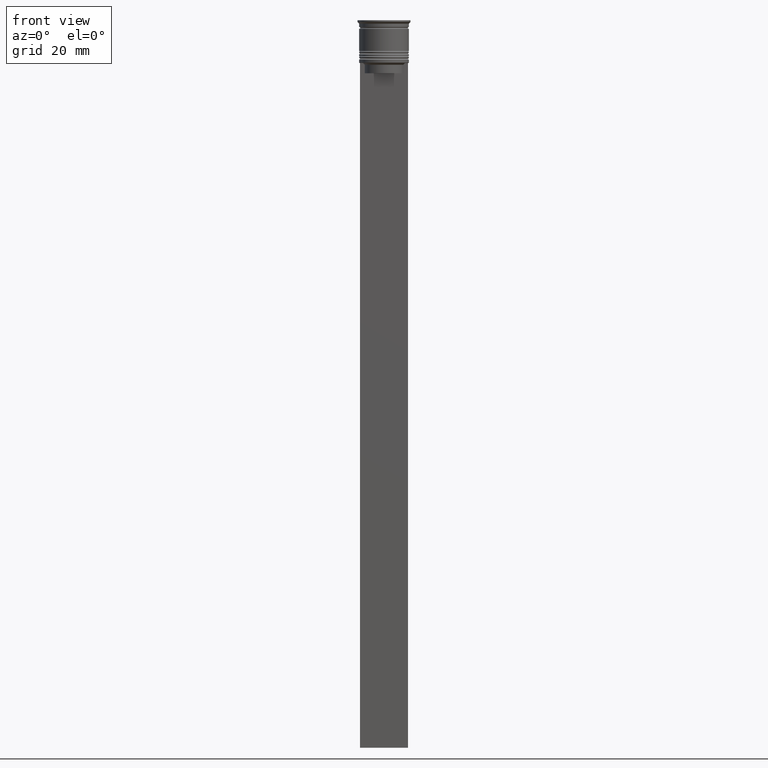
[diagram: clean part render]
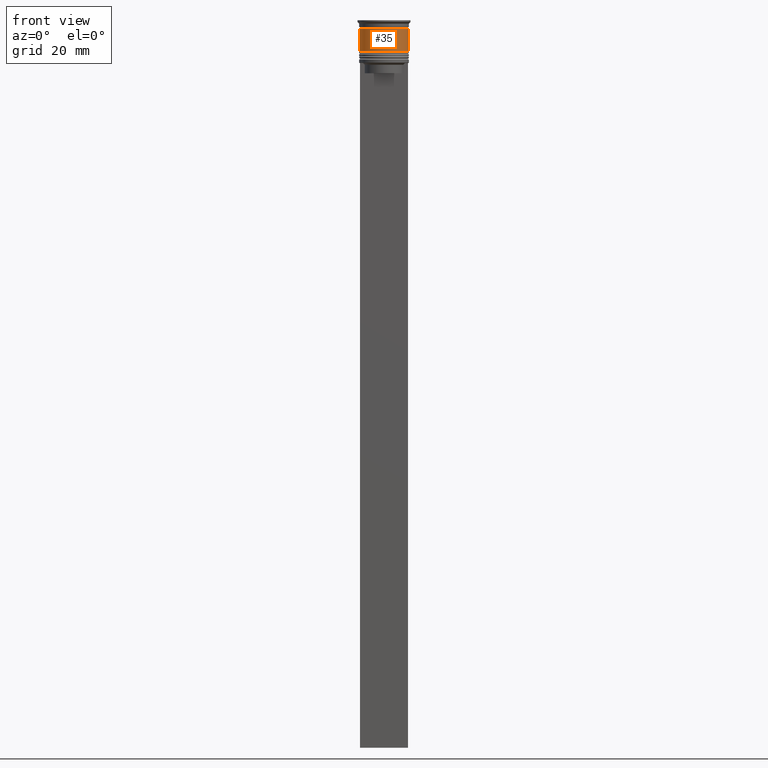
[diagram: same view with one face highlighted and labeled with its STEP entity id]
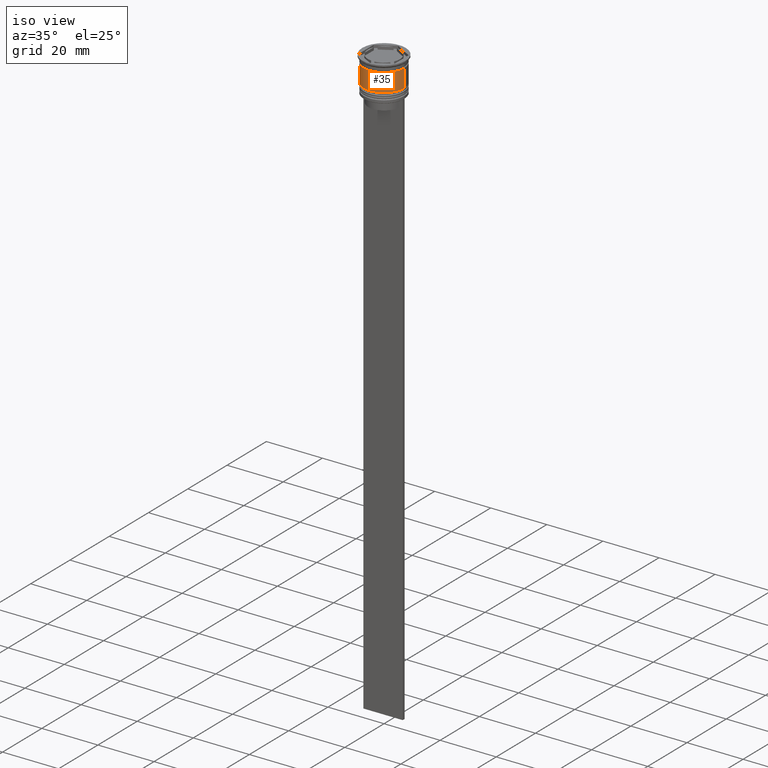
[diagram: same view with one face highlighted and labeled with its STEP entity id]
A machine part, front view. The second image highlights one B-rep face of the part: STEP entity #35.
A second angle (iso view) of the same face is appended — the face is thin or edge-on in the first view.
In plain terms, the highlighted cylindrical surface (edge-blend (fillet) strip) has radius 7.25 mm, axis along (-0, -0, 1).
Its self-contained STEP definition (entity closure, byte-faithful):
#12 = VERTEX_POINT ( 'NONE', #233 ) ;
#23 = CARTESIAN_POINT ( 'NONE',  ( 0.000000000000000000, 0.000000000000000000, -2.500000000000000444 ) ) ;
#35 = ADVANCED_FACE ( 'NONE', ( #1657 ), #2252, .T. ) ;
#69 = AXIS2_PLACEMENT_3D ( 'NONE', #1678, #632, #1114 ) ;
#93 = ORIENTED_EDGE ( 'NONE', *, *, #1059, .T. ) ;
#205 = CARTESIAN_POINT ( 'NONE',  ( 7.249999999999999112, 0.000000000000000000, 0.000000000000000000 ) ) ;
#233 = CARTESIAN_POINT ( 'NONE',  ( 7.250000000000000888, 0.000000000000000000, -9.000000000000001776 ) ) ;
#342 = ORIENTED_EDGE ( 'NONE', *, *, #2214, .F. ) ;
#363 = EDGE_CURVE ( 'NONE', #1963, #1389, #2106, .T. ) ;
#521 = CARTESIAN_POINT ( 'NONE',  ( 7.249999999999997335, 0.000000000000000000, -2.500000000000000444 ) ) ;
#581 = VERTEX_POINT ( 'NONE', #1599 ) ;
#604 = VECTOR ( 'NONE', #933, 1000.000000000000000 ) ;
#632 = DIRECTION ( 'NONE',  ( -0.000000000000000000, -0.000000000000000000, 1.000000000000000000 ) ) ;
#669 = EDGE_CURVE ( 'NONE', #12, #1389, #1097, .T. ) ;
#720 = ORIENTED_EDGE ( 'NONE', *, *, #669, .T. ) ;
#753 = DIRECTION ( 'NONE',  ( -0.000000000000000000, -0.000000000000000000, 1.000000000000000000 ) ) ;
#917 = VECTOR ( 'NONE', #2121, 1000.000000000000000 ) ;
#933 = DIRECTION ( 'NONE',  ( -0.000000000000000000, -0.000000000000000000, 1.000000000000000000 ) ) ;
#1057 = DIRECTION ( 'NONE',  ( -0.000000000000000000, -0.000000000000000000, 1.000000000000000000 ) ) ;
#1059 = EDGE_CURVE ( 'NONE', #581, #12, #2077, .T. ) ;
#1097 = LINE ( 'NONE', #205, #604 ) ;
#1114 = DIRECTION ( 'NONE',  ( 1.000000000000000000, 0.000000000000000000, 0.000000000000000000 ) ) ;
#1249 = AXIS2_PLACEMENT_3D ( 'NONE', #1408, #1057, #2302 ) ;
#1389 = VERTEX_POINT ( 'NONE', #521 ) ;
#1408 = CARTESIAN_POINT ( 'NONE',  ( 0.000000000000000000, 0.000000000000000000, -9.000000000000001776 ) ) ;
#1467 = DIRECTION ( 'NONE',  ( 1.000000000000000000, 0.000000000000000000, 0.000000000000000000 ) ) ;
#1599 = CARTESIAN_POINT ( 'NONE',  ( -7.250000000000000888, 8.878689293818312046E-16, -9.000000000000001776 ) ) ;
#1628 = EDGE_LOOP ( 'NONE', ( #342, #93, #720, #2090 ) ) ;
#1657 = FACE_OUTER_BOUND ( 'NONE', #1628, .T. ) ;
#1678 = CARTESIAN_POINT ( 'NONE',  ( 0.000000000000000000, 0.000000000000000000, 0.000000000000000000 ) ) ;
#1950 = CARTESIAN_POINT ( 'NONE',  ( -7.249999999999999112, 8.878689293818310074E-16, 0.000000000000000000 ) ) ;
#1957 = LINE ( 'NONE', #1950, #917 ) ;
#1963 = VERTEX_POINT ( 'NONE', #2244 ) ;
#2077 = CIRCLE ( 'NONE', #1249, 7.250000000000000888 ) ;
#2090 = ORIENTED_EDGE ( 'NONE', *, *, #363, .F. ) ;
#2106 = CIRCLE ( 'NONE', #2222, 7.249999999999997335 ) ;
#2121 = DIRECTION ( 'NONE',  ( -0.000000000000000000, -0.000000000000000000, 1.000000000000000000 ) ) ;
#2214 = EDGE_CURVE ( 'NONE', #581, #1963, #1957, .T. ) ;
#2222 = AXIS2_PLACEMENT_3D ( 'NONE', #23, #753, #1467 ) ;
#2244 = CARTESIAN_POINT ( 'NONE',  ( -7.249999999999997335, 8.878689293818308102E-16, -2.500000000000000444 ) ) ;
#2252 = CYLINDRICAL_SURFACE ( 'NONE', #69, 7.249999999999999112 ) ;
#2302 = DIRECTION ( 'NONE',  ( 1.000000000000000000, 0.000000000000000000, 0.000000000000000000 ) ) ;